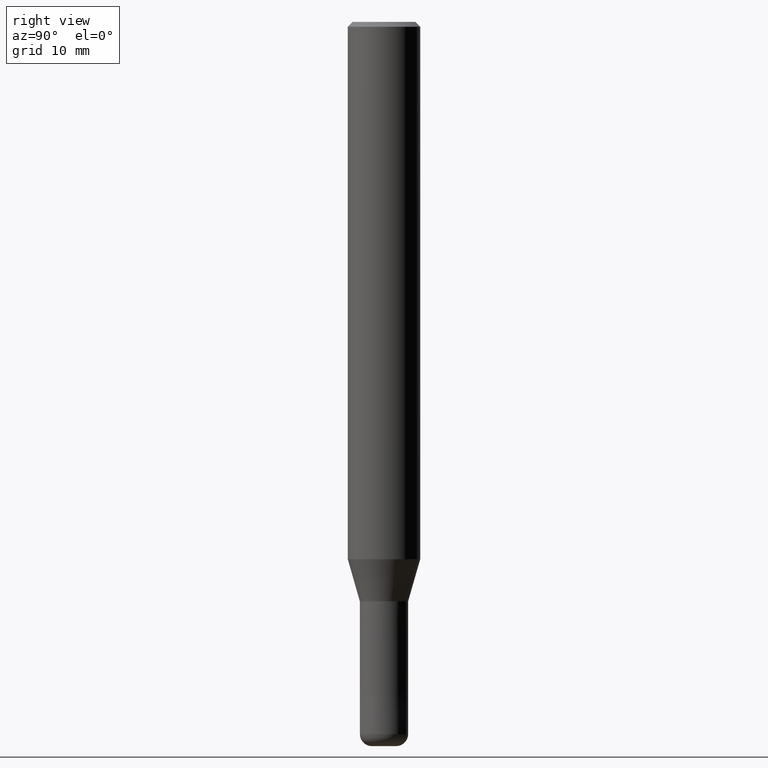
[diagram: clean part render]
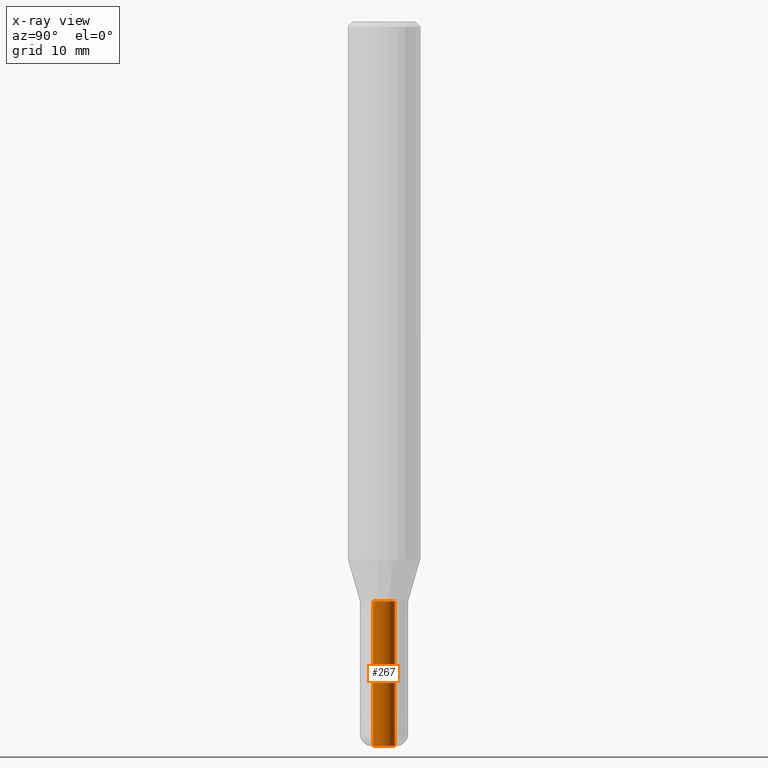
[diagram: x-ray — body ghosted, one internal face saturated and labeled with its STEP entity id]
A machine part, right view, then the same camera in x-ray: the body is ghosted and one INTERNAL B-rep face — a face not visible from any outside direction — is saturated and labeled: STEP entity #267.
In plain terms, the highlighted cylindrical surface (edge-blend (fillet) strip) has radius 0.9 mm, axis along (-0, -0, 1).
Its self-contained STEP definition (entity closure, byte-faithful):
#117=VERTEX_POINT('',#304);
#125=EDGE_CURVE('',#167,#211,#313,.T.);
#137=EDGE_CURVE('',#117,#187,#326,.T.);
#165=EDGE_CURVE('',#187,#167,#358,.T.);
#167=VERTEX_POINT('',#360);
#187=VERTEX_POINT('',#383);
#197=EDGE_CURVE('',#117,#211,#394,.T.);
#211=VERTEX_POINT('',#414);
#267=ADVANCED_FACE('',(#475),#476,.F.);
#304=CARTESIAN_POINT('',(0.0,0.9,-48.0));
#313=LINE('',#518,#519);
#326=LINE('',#537,#538);
#358=CIRCLE('',#578,0.9);
#360=CARTESIAN_POINT('',(1.10214571844014E-016,-0.9,-60.0));
#383=CARTESIAN_POINT('',(0.0,0.9,-60.0));
#394=CIRCLE('',#624,0.9);
#414=CARTESIAN_POINT('',(1.10214571844014E-016,-0.9,-48.0));
#475=FACE_OUTER_BOUND('',#721,.T.);
#476=CYLINDRICAL_SURFACE('',#722,0.9);
#518=CARTESIAN_POINT('',(1.10214571844014E-016,-0.9,-54.0));
#519=VECTOR('',#757,1.0);
#537=CARTESIAN_POINT('',(-1.10214571844014E-016,0.9,-54.0));
#538=VECTOR('',#768,1.0);
#578=AXIS2_PLACEMENT_3D('',#817,#818,#819);
#624=AXIS2_PLACEMENT_3D('',#861,#862,#863);
#721=EDGE_LOOP('',(#965,#966,#967,#968));
#722=AXIS2_PLACEMENT_3D('',#969,#970,#971);
#757=DIRECTION('',(0.0,-0.0,1.0));
#768=DIRECTION('',(0.0,-0.0,-1.0));
#817=CARTESIAN_POINT('',(0.0,0.0,-60.0));
#818=DIRECTION('',(0.0,0.0,-1.0));
#819=DIRECTION('',(0.0,1.0,0.0));
#861=CARTESIAN_POINT('',(0.0,0.0,-48.0));
#862=DIRECTION('',(0.0,0.0,-1.0));
#863=DIRECTION('',(0.0,1.0,0.0));
#965=ORIENTED_EDGE('',*,*,#137,.T.);
#966=ORIENTED_EDGE('',*,*,#165,.T.);
#967=ORIENTED_EDGE('',*,*,#125,.T.);
#968=ORIENTED_EDGE('',*,*,#197,.F.);
#969=CARTESIAN_POINT('',(0.0,0.0,-54.0));
#970=DIRECTION('',(-0.0,-0.0,1.0));
#971=DIRECTION('',(0.0,1.0,0.0));